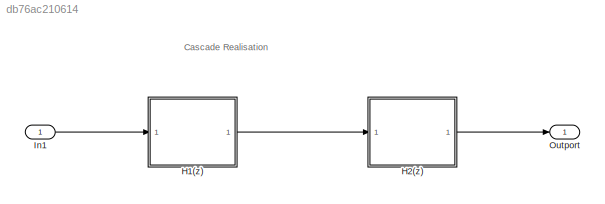
MODEL slx_db76ac210614
KIND model
CONFIG AbsTol = auto
CONFIG EnableMultiTasking = off
CONFIG FixedStep = auto
CONFIG MaxStep = auto
CONFIG MinStep = auto
CONFIG RelTol = 1e-3
CONFIG SampleTimeConstraint = Unconstrained
CONFIG Solver = VariableStepAuto
CONFIG SolverName = VariableStepAuto
CONFIG StartTime = 0.0
CONFIG StopTime = 10.0
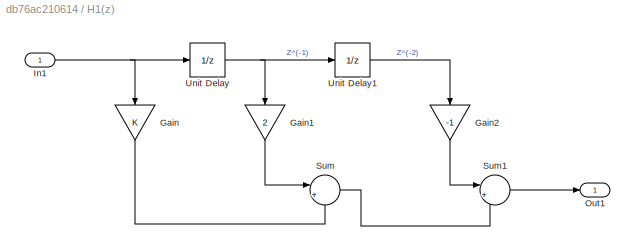
BLOCK [SubSystem] H1(z)
  Ports = [1, 1]
  RequestExecContextInheritance = off
BLOCK [Gain] H1(z)/Gain
  NameLocation = left
BLOCK [Gain] H1(z)/Gain1
  Gain = 2
  NameLocation = left
BLOCK [Gain] H1(z)/Gain2
  Gain = -1
  NameLocation = left
BLOCK [Inport] H1(z)/In1
BLOCK [Outport] H1(z)/Out1
BLOCK [Sum] H1(z)/Sum
  Inputs = |++
  Ports = [2, 1]
BLOCK [Sum] H1(z)/Sum1
  Inputs = |++
  Ports = [2, 1]
BLOCK [UnitDelay] H1(z)/Unit Delay
  HasFrameUpgradeWarning = on
  SampleTime = -1
BLOCK [UnitDelay] H1(z)/Unit Delay1
  HasFrameUpgradeWarning = on
  SampleTime = -1
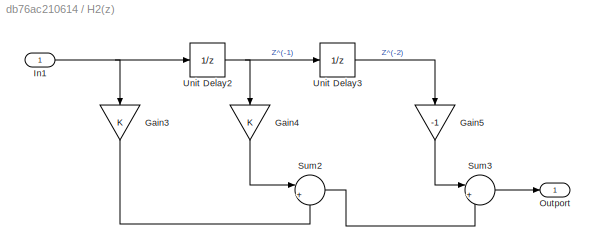
BLOCK [SubSystem] H2(z)
  Ports = [1, 1]
  RequestExecContextInheritance = off
BLOCK [Gain] H2(z)/Gain3
  NameLocation = left
BLOCK [Gain] H2(z)/Gain4
  NameLocation = left
BLOCK [Gain] H2(z)/Gain5
  Gain = -1
  NameLocation = left
BLOCK [Inport] H2(z)/In1
BLOCK [Outport] H2(z)/Outport
BLOCK [Sum] H2(z)/Sum2
  Inputs = |++
  Ports = [2, 1]
BLOCK [Sum] H2(z)/Sum3
  Inputs = |++
  Ports = [2, 1]
BLOCK [UnitDelay] H2(z)/Unit Delay2
  HasFrameUpgradeWarning = on
  SampleTime = -1
BLOCK [UnitDelay] H2(z)/Unit Delay3
  HasFrameUpgradeWarning = on
  SampleTime = -1
BLOCK [Inport] In1
  OutDataTypeStr = double
  PortDimensions = 1
  SampleTime = 0
  SamplingMode = Sample based
  SignalType = real
BLOCK [Outport] Outport
  OutDataTypeStr = double
  PortDimensions = 1
  SampleTime = 0
  SamplingMode = Sample based
  SignalType = real
ANNOTATION (root): Cascade Realisation
LINE H1(z)/Gain1:1 -> H1(z)/Sum:1
LINE H1(z)/Gain2:1 -> H1(z)/Sum1:1
LINE H1(z)/Gain:1 -> H1(z)/Sum:2
NET H1(z)/In1:1 -> H1(z)/Gain:1, H1(z)/Unit Delay:1
LINE H1(z)/Sum1:1 -> H1(z)/Out1:1
LINE H1(z)/Sum:1 -> H1(z)/Sum1:2
LINE H1(z)/Unit Delay1:1 -> H1(z)/Gain2:1
NET H1(z)/Unit Delay:1 -> H1(z)/Gain1:1, H1(z)/Unit Delay1:1
LINE H1(z):1 -> H2(z):1
LINE H2(z)/Gain3:1 -> H2(z)/Sum2:2
LINE H2(z)/Gain4:1 -> H2(z)/Sum2:1
LINE H2(z)/Gain5:1 -> H2(z)/Sum3:1
NET H2(z)/In1:1 -> H2(z)/Gain3:1, H2(z)/Unit Delay2:1
LINE H2(z)/Sum2:1 -> H2(z)/Sum3:2
LINE H2(z)/Sum3:1 -> H2(z)/Outport:1
NET H2(z)/Unit Delay2:1 -> H2(z)/Gain4:1, H2(z)/Unit Delay3:1
LINE H2(z)/Unit Delay3:1 -> H2(z)/Gain5:1
LINE H2(z):1 -> Outport:1
LINE In1:1 -> H1(z):1
note: NET lines group one-source signal fan-out (src -> all destinations, sorted); 1:1 wires keep LINE
